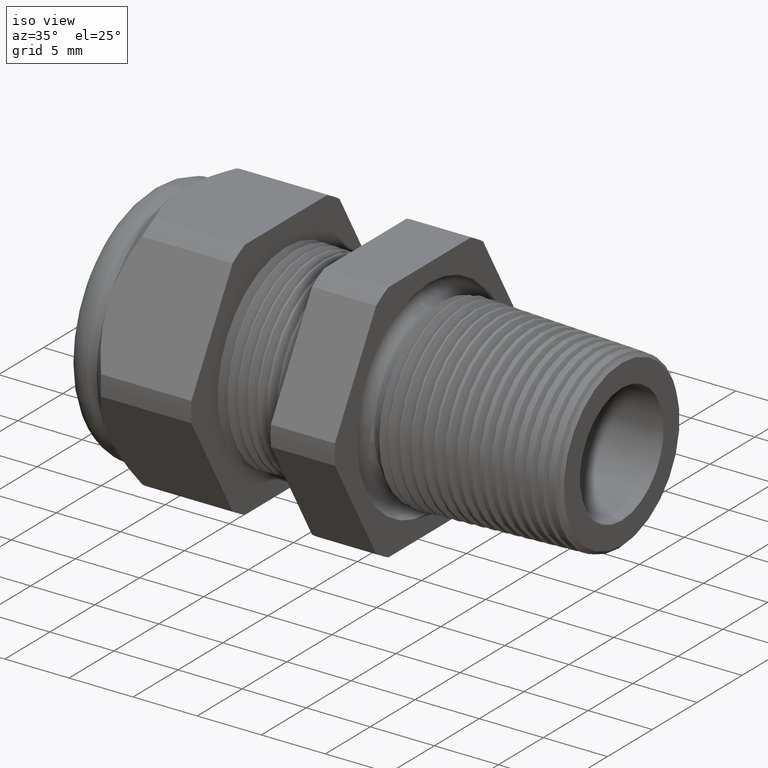
[diagram: clean part render]
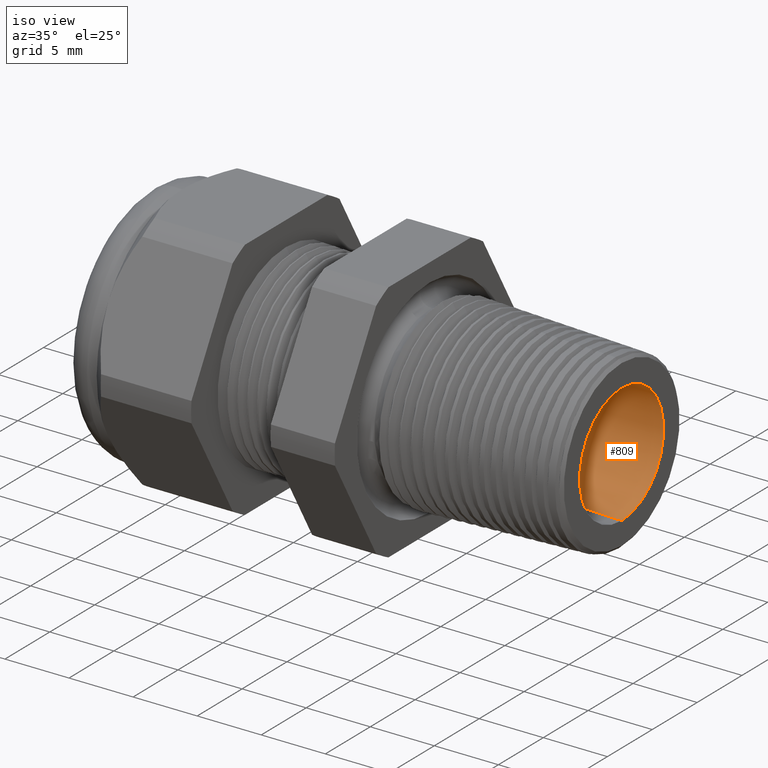
[diagram: same view with one face highlighted and labeled with its STEP entity id]
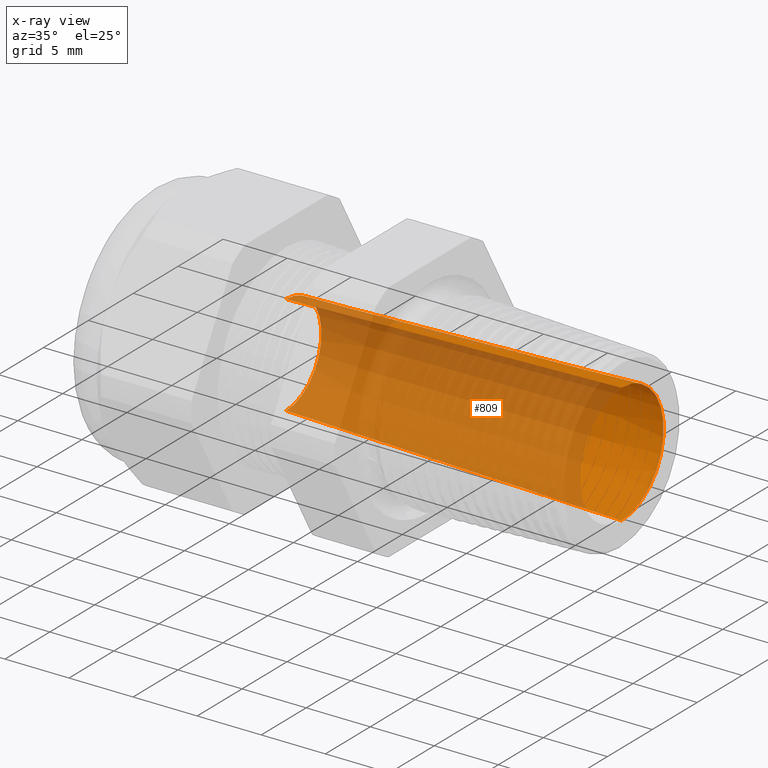
[diagram: x-ray of the same camera — body ghosted, the highlighted face saturated]
A machine part, iso view. The second image highlights one B-rep face of the part: STEP entity #809.
The next image is the same camera in x-ray: the body ghosted, the highlighted face saturated — about 78% of this face is hidden behind the body in this view.
In plain terms, the highlighted conical surface has half-angle 1.611 deg.
Its self-contained STEP definition (entity closure, byte-faithful):
#790 = ORIENTED_EDGE ( 'NONE', *, *, #807, .T. ) ;
#807 = EDGE_CURVE ( 'NONE', #5554, #5552, #3487, .T. ) ;
#809 = ADVANCED_FACE ( 'NONE', ( #3482 ), #3481, .F. ) ;
#810 = EDGE_LOOP ( 'NONE', ( #811, #812, #814, #790 ) ) ;
#811 = ORIENTED_EDGE ( 'NONE', *, *, #5559, .F. ) ;
#812 = ORIENTED_EDGE ( 'NONE', *, *, #813, .F. ) ;
#813 = EDGE_CURVE ( 'NONE', #5577, #5545, #3475, .T. ) ;
#814 = ORIENTED_EDGE ( 'NONE', *, *, #5555, .T. ) ;
#3472 = DIRECTION ( 'NONE',  ( 0.0000000000000000000, 0.0000000000000000000, -1.000000000000000000 ) ) ;
#3473 = DIRECTION ( 'NONE',  ( 1.000000000000000000, 0.0000000000000000000, 0.0000000000000000000 ) ) ;
#3474 = AXIS2_PLACEMENT_3D ( 'NONE', #3480, #3473, #3472 ) ;
#3475 = CIRCLE ( 'NONE', #3474, 0.1550000000000000000 ) ;
#3476 = DIRECTION ( 'NONE',  ( 0.0000000000000000000, 0.0000000000000000000, -1.000000000000000000 ) ) ;
#3477 = DIRECTION ( 'NONE',  ( 1.000000000000000000, 0.0000000000000000000, 0.0000000000000000000 ) ) ;
#3478 = CARTESIAN_POINT ( 'NONE',  ( -0.7508661417322833900, 0.0000000000000000000, 0.0000000000000000000 ) ) ;
#3479 = AXIS2_PLACEMENT_3D ( 'NONE', #3478, #3477, #3476 ) ;
#3480 = CARTESIAN_POINT ( 'NONE',  ( -0.7508661417322833900, 0.0000000000000000000, 0.0000000000000000000 ) ) ;
#3481 = CONICAL_SURFACE ( 'NONE', #3479, 0.1550000000000000000, 0.02812558522312239400 ) ;
#3482 = FACE_OUTER_BOUND ( 'NONE', #810, .T. ) ;
#3483 = DIRECTION ( 'NONE',  ( 0.0000000000000000000, 0.0000000000000000000, -1.000000000000000000 ) ) ;
#3484 = DIRECTION ( 'NONE',  ( 1.000000000000000000, 0.0000000000000000000, 0.0000000000000000000 ) ) ;
#3485 = CARTESIAN_POINT ( 'NONE',  ( 0.2799999999999999700, 0.0000000000000000000, 0.0000000000000000000 ) ) ;
#3486 = AXIS2_PLACEMENT_3D ( 'NONE', #3485, #3484, #3483 ) ;
#3487 = CIRCLE ( 'NONE', #3486, 0.1840013610877269900 ) ;
#5237 = CARTESIAN_POINT ( 'NONE',  ( -0.7508661417322833900, 2.075784658813404700E-017, 0.1550000000000000000 ) ) ;
#5271 = DIRECTION ( 'NONE',  ( 0.9996045018004825500, 3.443936696338360500E-018, 0.02812187725257734400 ) ) ;
#5272 = VECTOR ( 'NONE', #5271, 39.37007874015748900 ) ;
#5273 = CARTESIAN_POINT ( 'NONE',  ( -0.7508661417322833900, 1.898202538678397300E-017, 0.1550000000000000000 ) ) ;
#5274 = LINE ( 'NONE', #5273, #5272 ) ;
#5280 = DIRECTION ( 'NONE',  ( 0.9996045018004825500, 0.0000000000000000000, -0.02812187725257734400 ) ) ;
#5281 = VECTOR ( 'NONE', #5280, 39.37007874015748900 ) ;
#5282 = CARTESIAN_POINT ( 'NONE',  ( -0.7508661417322833900, 0.0000000000000000000, -0.1550000000000000000 ) ) ;
#5283 = LINE ( 'NONE', #5282, #5281 ) ;
#5284 = CARTESIAN_POINT ( 'NONE',  ( 0.2799999999999999700, 0.0000000000000000000, -0.1840013610877269900 ) ) ;
#5285 = CARTESIAN_POINT ( 'NONE',  ( 0.2799999999999999700, 2.253366778948412500E-017, 0.1840013610877269900 ) ) ;
#5303 = CARTESIAN_POINT ( 'NONE',  ( -0.7508661417322833900, 0.0000000000000000000, -0.1550000000000000000 ) ) ;
#5545 = VERTEX_POINT ( 'NONE', #5237 ) ;
#5552 = VERTEX_POINT ( 'NONE', #5285 ) ;
#5554 = VERTEX_POINT ( 'NONE', #5284 ) ;
#5555 = EDGE_CURVE ( 'NONE', #5577, #5554, #5283, .T. ) ;
#5559 = EDGE_CURVE ( 'NONE', #5545, #5552, #5274, .T. ) ;
#5577 = VERTEX_POINT ( 'NONE', #5303 ) ;